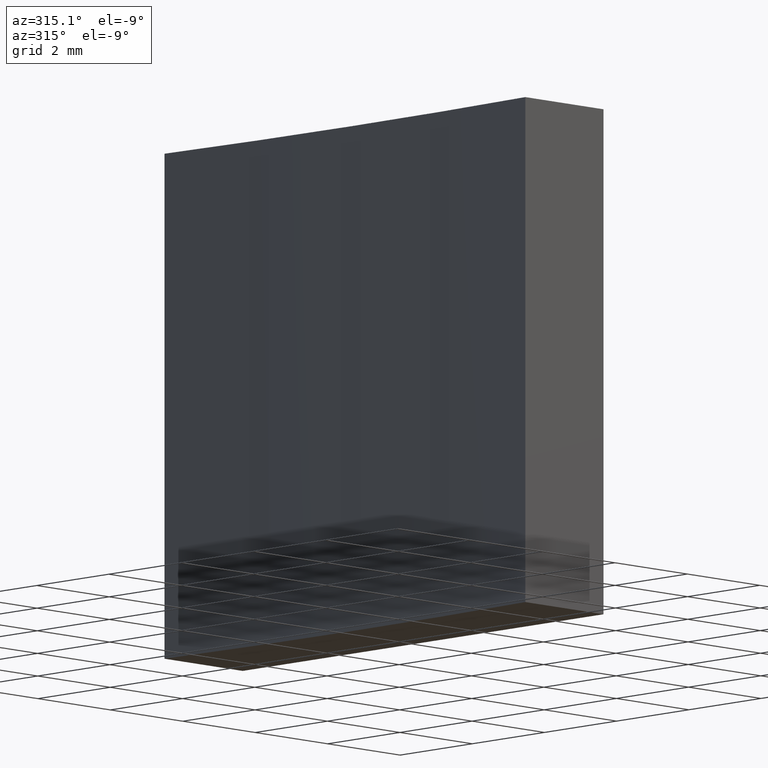
[diagram: clean part render]
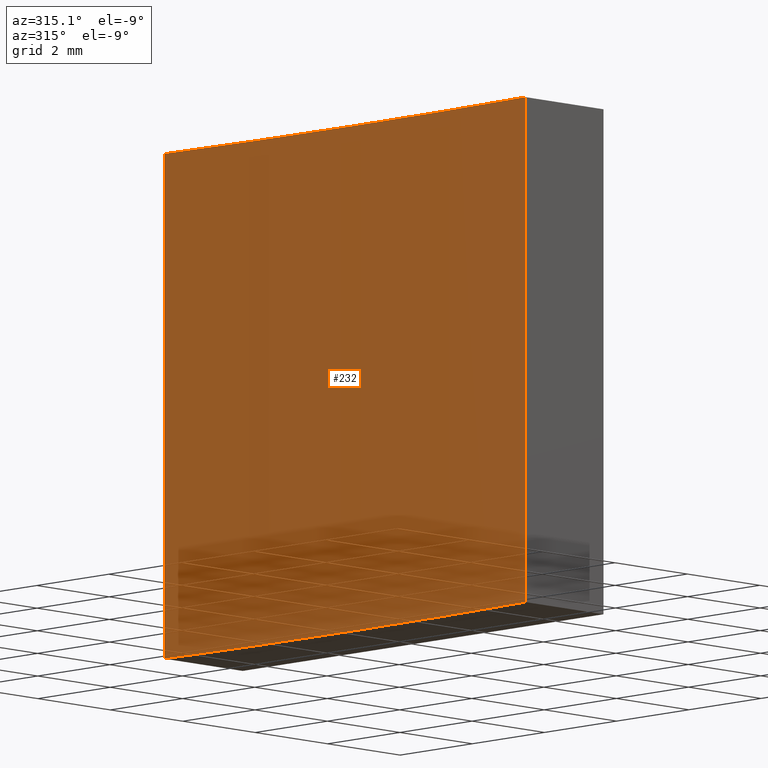
[diagram: same view with one face highlighted and labeled with its STEP entity id]
A machine part, auxiliary view. The second image highlights one B-rep face of the part: STEP entity #232.
In plain terms, the highlighted cylindrical surface (partial cylindrical patch) has radius 77.55 mm, axis along (-0, -0, -1).
Its self-contained STEP definition (entity closure, byte-faithful):
#5 = CARTESIAN_POINT ( 'NONE',  ( -16.81205432023612190, 23.68283811033197850, 10.00000000000000000 ) ) ;
#22 = CARTESIAN_POINT ( 'NONE',  ( -94.20070012826145955, 18.68283811033194297, 0.000000000000000000 ) ) ;
#28 = EDGE_CURVE ( 'NONE', #173, #170, #228, .T. ) ;
#29 = CARTESIAN_POINT ( 'NONE',  ( -16.81205432023611479, 13.68283811033197139, 10.00000000000000000 ) ) ;
#41 = DIRECTION ( 'NONE',  ( -0.000000000000000000, -0.000000000000000000, -1.000000000000000000 ) ) ;
#45 = DIRECTION ( 'NONE',  ( -0.000000000000000000, -0.000000000000000000, -1.000000000000000000 ) ) ;
#49 = CIRCLE ( 'NONE', #122, 77.54999999999999716 ) ;
#56 = DIRECTION ( 'NONE',  ( -0.000000000000000000, -0.000000000000000000, -1.000000000000000000 ) ) ;
#57 = ORIENTED_EDGE ( 'NONE', *, *, #28, .F. ) ;
#59 = CARTESIAN_POINT ( 'NONE',  ( -94.20070012826145955, 18.68283811033194297, 10.00000000000000000 ) ) ;
#62 = CARTESIAN_POINT ( 'NONE',  ( -94.20070012826145955, 18.68283811033194297, 10.00000000000000000 ) ) ;
#65 = DIRECTION ( 'NONE',  ( -0.000000000000000000, -0.000000000000000000, -1.000000000000000000 ) ) ;
#83 = DIRECTION ( 'NONE',  ( -0.000000000000000000, -0.000000000000000000, -1.000000000000000000 ) ) ;
#97 = ORIENTED_EDGE ( 'NONE', *, *, #223, .T. ) ;
#103 = CIRCLE ( 'NONE', #234, 77.54999999999999716 ) ;
#104 = DIRECTION ( 'NONE',  ( 1.000000000000000000, 0.000000000000000000, 0.000000000000000000 ) ) ;
#107 = EDGE_CURVE ( 'NONE', #148, #158, #178, .T. ) ;
#120 = CARTESIAN_POINT ( 'NONE',  ( -16.81205432023611479, 13.68283811033197139, 0.000000000000000000 ) ) ;
#122 = AXIS2_PLACEMENT_3D ( 'NONE', #59, #41, #229 ) ;
#129 = AXIS2_PLACEMENT_3D ( 'NONE', #62, #45, #199 ) ;
#141 = FACE_OUTER_BOUND ( 'NONE', #150, .T. ) ;
#143 = CYLINDRICAL_SURFACE ( 'NONE', #129, 77.54999999999998295 ) ;
#148 = VERTEX_POINT ( 'NONE', #163 ) ;
#150 = EDGE_LOOP ( 'NONE', ( #97, #57, #239, #225 ) ) ;
#151 = CARTESIAN_POINT ( 'NONE',  ( -16.81205432023611479, 13.68283811033197139, 10.00000000000000000 ) ) ;
#154 = EDGE_CURVE ( 'NONE', #148, #173, #49, .T. ) ;
#155 = VECTOR ( 'NONE', #56, 1000.000000000000000 ) ;
#158 = VERTEX_POINT ( 'NONE', #198 ) ;
#163 = CARTESIAN_POINT ( 'NONE',  ( -16.81205432023612190, 23.68283811033197850, 10.00000000000000000 ) ) ;
#170 = VERTEX_POINT ( 'NONE', #120 ) ;
#173 = VERTEX_POINT ( 'NONE', #29 ) ;
#178 = LINE ( 'NONE', #5, #214 ) ;
#198 = CARTESIAN_POINT ( 'NONE',  ( -16.81205432023612190, 23.68283811033197850, 0.000000000000000000 ) ) ;
#199 = DIRECTION ( 'NONE',  ( -1.000000000000000000, 0.000000000000000000, 0.000000000000000000 ) ) ;
#214 = VECTOR ( 'NONE', #83, 1000.000000000000000 ) ;
#223 = EDGE_CURVE ( 'NONE', #158, #170, #103, .T. ) ;
#225 = ORIENTED_EDGE ( 'NONE', *, *, #107, .T. ) ;
#228 = LINE ( 'NONE', #151, #155 ) ;
#229 = DIRECTION ( 'NONE',  ( 1.000000000000000000, 0.000000000000000000, 0.000000000000000000 ) ) ;
#232 = ADVANCED_FACE ( 'NONE', ( #141 ), #143, .F. ) ;
#234 = AXIS2_PLACEMENT_3D ( 'NONE', #22, #65, #104 ) ;
#239 = ORIENTED_EDGE ( 'NONE', *, *, #154, .F. ) ;